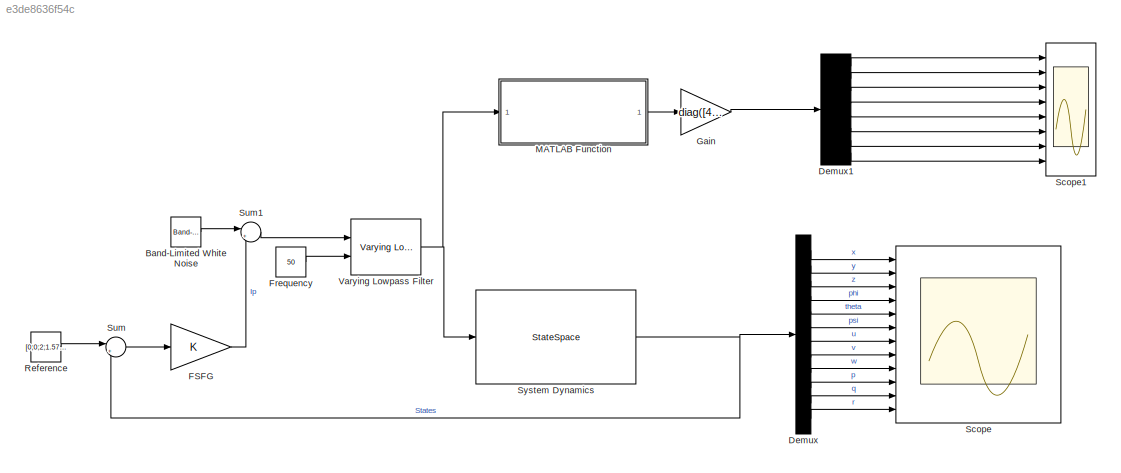
MODEL slx_e3de8636f54c
KIND model
CONFIG AbsTol = auto
CONFIG EnableMultiTasking = off
CONFIG FixedStep = auto
CONFIG MaxStep = auto
CONFIG MinStep = auto
CONFIG RelTol = 1e-3
CONFIG SampleTimeConstraint = Unconstrained
CONFIG SolverName = VariableStepAuto
CONFIG StartTime = 0.0
CONFIG StopTime = 25
BLOCK [Reference] Band-Limited White Noise  REF=simulink/Sources/Band-Limited
White Noise
  Ports = [0, 1]
  SourceBlock = simulink/Sources/Band-Limited\nWhite Noise
  SourceProductBaseCode = SL
  SourceType = Band-Limited White Noise.
BLOCK [Demux] Demux
  Outputs = 12
  Ports = [1, 12]
BLOCK [Demux] Demux1
  Outputs = 8
  Ports = [1, 8]
BLOCK [Gain] FSFG
  Gain = K
  Multiplication = Matrix(K*u) (u vector)
BLOCK [Constant] Frequency
  Value = 50
BLOCK [Gain] Gain
  Gain = diag([40,40,40,40,40,40,40,40])
  Multiplication = Matrix(K*u) (u vector)
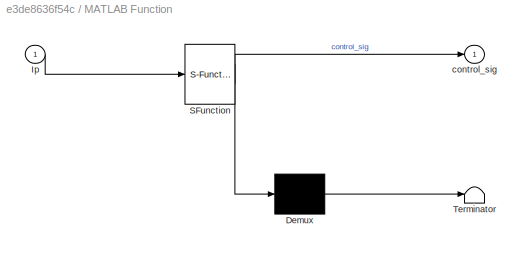
BLOCK [SubSystem] MATLAB Function
  ErrorFcn = Stateflow.Translate.translate
  PermitHierarchicalResolution = ExplicitOnly
  Ports = [1, 1]
  RequestExecContextInheritance = off
  SFBlockType = MATLAB Function
  TreatAsAtomicUnit = on
BLOCK [Demux] MATLAB Function/ Demux 
  Outputs = 1
  Ports = [1, 1]
BLOCK [S-Function] MATLAB Function/ SFunction 
  EnableBusSupport = on
  FunctionName = sf_sfun
  PortCounts = [1 2]
  Ports = [1, 2]
  SFcnIsStateOwnerBlock = off
  SFunctionDeploymentMode = off
  Tag = Stateflow S-Function 2
BLOCK [Terminator] MATLAB Function/ Terminator 
BLOCK [Inport] MATLAB Function/Ip
BLOCK [Outport] MATLAB Function/control_sig
BLOCK [Constant] Reference
  SampleTime = -1
  Value = [0;0;2;1.57;1;0.8;0;0;0;0;0;0]
BLOCK [Scope] Scope
  Floating = off
  NumInputPorts = 12
  Ports = [12]
  ScopeSpecificationString = Simulink.scopes.TimeScopeBlockCfg('CurrentConfiguration', extmgr.ConfigurationSet(extmgr.Configuration('Core','General UI',true),extmgr.Configuration('Core','Source UI',true),extmgr.Configuration('Sources','WiredSimulink',true),extmgr.Configuration('Visuals','Time Domain',true,'SerializedDisplays',{struct('MinYLimReal','-10','MaxYLimReal','11','YLabelReal','','MinYLimMag','0.00000','MaxYLimMag','1...<+8862ch>
BLOCK [Scope] Scope1
  Floating = off
  NumInputPorts = 8
  Ports = [8]
  ScopeSpecificationString = Simulink.scopes.TimeScopeBlockCfg('CurrentConfiguration', extmgr.ConfigurationSet(extmgr.Configuration('Core','General UI',true),extmgr.Configuration('Core','Source UI',true),extmgr.Configuration('Sources','WiredSimulink',true,'DataLoggingVariableName','ScopeData1'),extmgr.Configuration('Visuals','Time Domain',true,'SerializedDisplays',{struct('MinYLimReal','-35.9926','MaxYLimReal','32.86428','YLa...<+6292ch>
BLOCK [Sum] Sum
  Inputs = |+-
  Ports = [2, 1]
BLOCK [Sum] Sum1
  Inputs = |++
  Ports = [2, 1]
BLOCK [StateSpace] System Dynamics
  A = A
  B = B
  C = eye(12)
  D = zeros(12,6)
  InitialCondition = zeros(12,1)
  ParameterTunability = Optimized
  Ports = [1, 1]
BLOCK [Reference] Varying Lowpass Filter  REF=cstblocks/Linear Parameter Varying/Varying Lowpass Filter
  Ports = [2, 1]
  SourceBlock = cstblocks/Linear Parameter Varying/Varying Lowpass Filter
  SourceProductBaseCode = CT
  SourceType = Varying Lowpass Filter
LINE Band-Limited White Noise:1 -> Sum1:1
LINE Demux1:1 -> Scope1:1
LINE Demux1:2 -> Scope1:2
LINE Demux1:3 -> Scope1:3
LINE Demux1:4 -> Scope1:4
LINE Demux1:5 -> Scope1:5
LINE Demux1:6 -> Scope1:6
LINE Demux1:7 -> Scope1:7
LINE Demux1:8 -> Scope1:8
LINE Demux:1 -> Scope:1
LINE Demux:10 -> Scope:10
LINE Demux:11 -> Scope:11
LINE Demux:12 -> Scope:12
LINE Demux:2 -> Scope:2
LINE Demux:3 -> Scope:3
LINE Demux:4 -> Scope:4
LINE Demux:5 -> Scope:5
LINE Demux:6 -> Scope:6
LINE Demux:7 -> Scope:7
LINE Demux:8 -> Scope:8
LINE Demux:9 -> Scope:9
LINE FSFG:1 -> Sum1:2
LINE Frequency:1 -> Varying Lowpass Filter:2
LINE Gain:1 -> Demux1:1
LINE MATLAB Function:1 -> Gain:1
LINE Reference:1 -> Sum:1
LINE Sum1:1 -> Varying Lowpass Filter:1
LINE Sum:1 -> FSFG:1
NET System Dynamics:1 -> Demux:1, Sum:2
NET Varying Lowpass Filter:1 -> MATLAB Function:1, System Dynamics:1
note: NET lines group one-source signal fan-out (src -> all destinations, sorted); 1:1 wires keep LINE
CHART MATLAB Function states=1 transitions=1
  STATE_LABEL 'eML_blk_kernel()'
  STATE_LABEL "SCRIPT:\nfunction control_sig = fcn(Ip)\nT=[0.707,0.707,-0.707,-0.707,0,0,0,0;\n   -0.707,0.707,-0.707,0.707,0,0,0,0;\n   0,0,0,0,-1,1,1,-1;\n   0.06,-0.06,0.06,-0.06,-0.218,-0.218,0.218,0.218;\n   0.06,0.06,-0.06,-0.06,0.120,-0.120,0.120,-0.120;\n   -0.1888,0.1888,0.1888,-0.1888,0,0,0,0];\n\nK=diag([40,40,40,40,40,40,40,40]);\n\nT_star=(T.')*inv(T*(T.'));\n\ncontrol_sig=inv(K)*T_star*Ip;\n\n"
CHART  states=0 transitions=0
